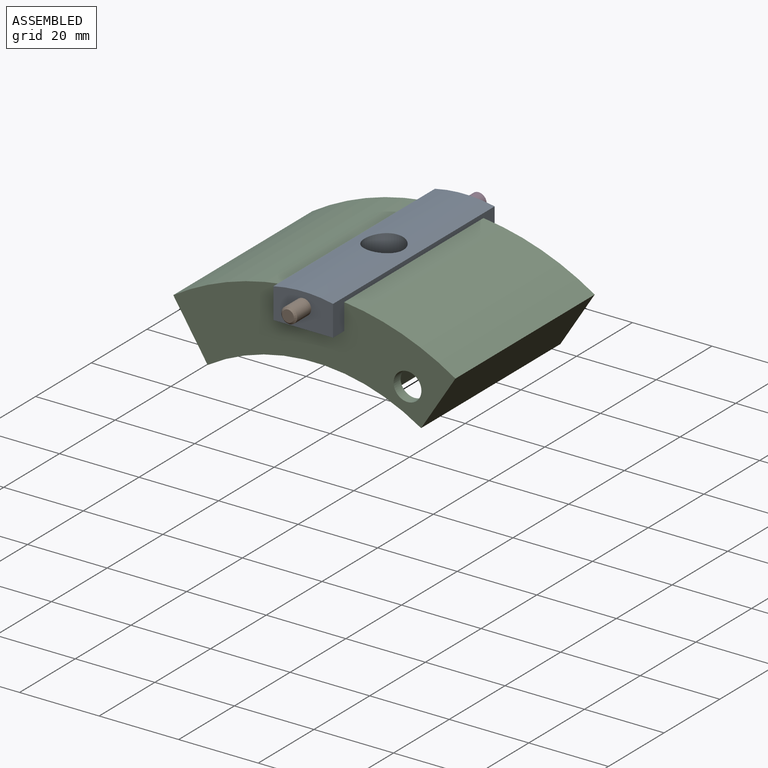
[diagram: assembled view]
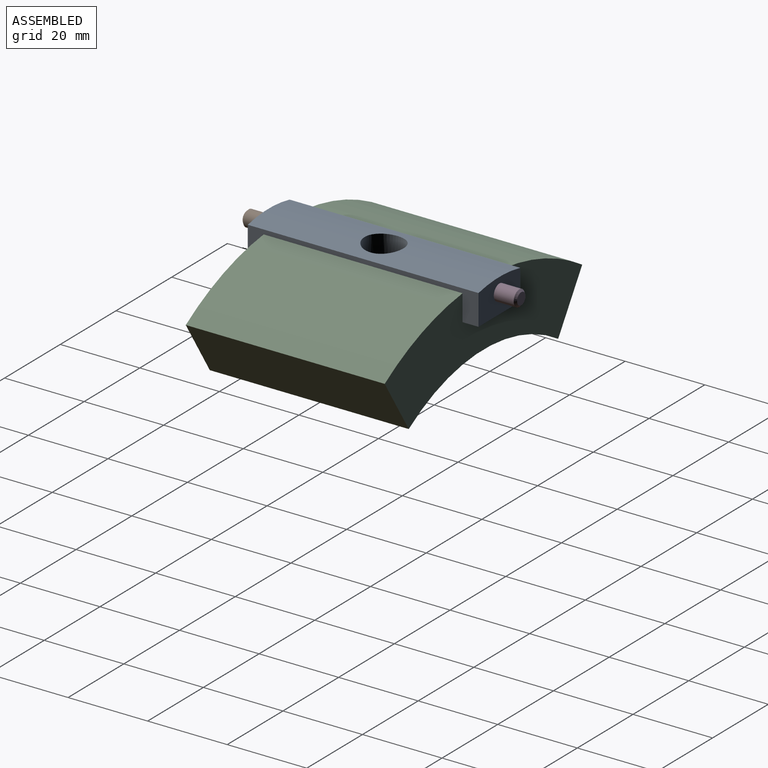
[diagram: assembled view, second angle]
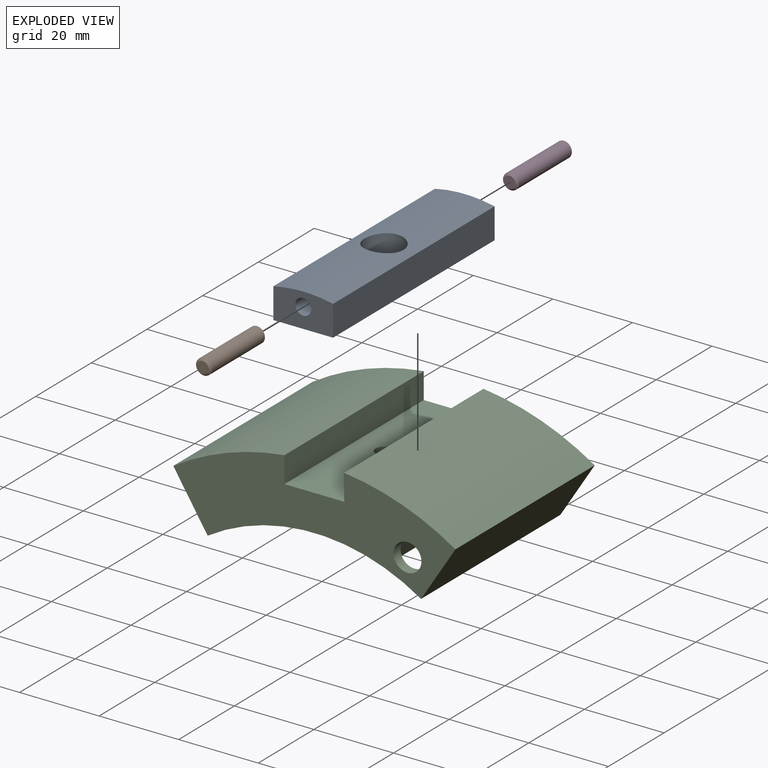
[diagram: exploded view]
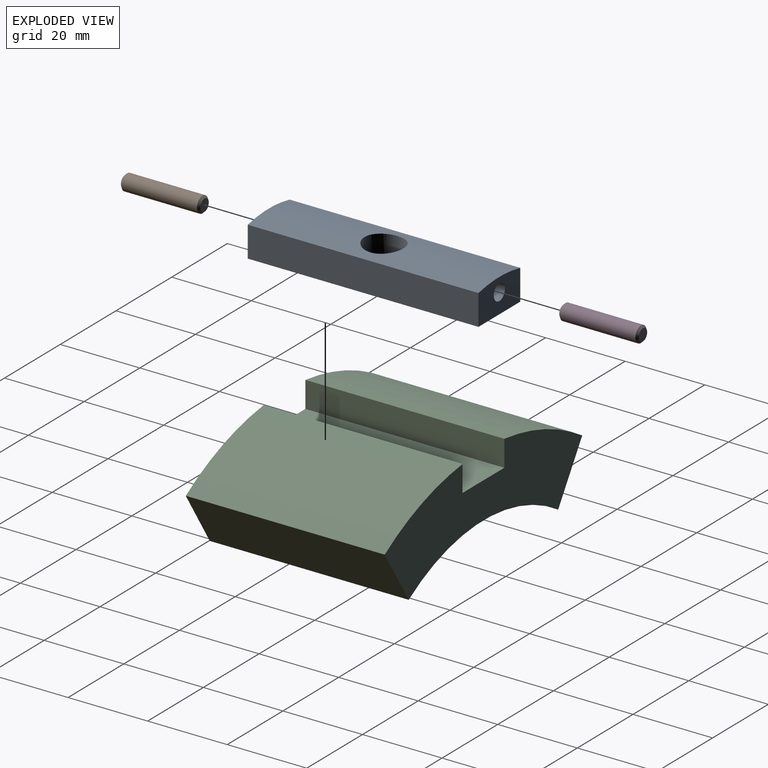
[diagram: exploded view, second angle]
ASSEMBLY  parts=4 mates=3
PART A: 13 faces, bbox 15x58x8.5 mm
  f0: cylinder r=35mm len=58mm, axis (0,1,0), area 802mm2, adj f2,f3,f4,f5,f11
  f1: plane 58x15mm, normal (0,0,-1), area 850.4mm2, adj f2,f3,f4,f5,f10
  f2: plane 58x7.69mm, normal (1,0,0), area 445.8mm2, adj f0,f1,f4,f5
  f3: plane 58x7.69mm, normal (-1,0,0), area 445.8mm2, adj f0,f1,f4,f5
  f4: plane 15x8.5mm, normal (0,-1,0), area 110.9mm2, adj f0,f1,f2,f3,f8
  f5: plane 15x8.5mm, normal (0,1,0), area 110.9mm2, adj f0,f1,f2,f3,f6
  f6: cylinder r=2mm len=14mm, axis (0,1,0), area 175.9mm2, adj f5,f7
  f7: cone r=0mm half-angle=59deg, axis (0,1,0), area 14.7mm2, adj f6
  f8: cylinder r=2mm len=14mm, axis (0,-1,0), area 175.9mm2, adj f4,f9
  f9: cone r=0mm half-angle=59deg, axis (0,-1,0), area 14.7mm2, adj f8
  f10: cylinder r=2.5mm len=5mm, axis (0,0,1), area 55mm2, adj f1,f12
  f11: cylinder r=4.88mm len=9.75mm, axis (0,0,1), area 147.9mm2, adj f0,f12
  f12: plane 9.75x9.75mm, normal (0,0,1), area 55mm2, adj f10,f11
PART B: 5 faces, bbox 4x4x20 mm
  f0: cylinder r=2mm len=19mm, axis (0,0,-1), area 238.8mm2, adj f3,f4
  f1: plane 3x3mm, normal (0,0,1), area 7.1mm2, adj f4
  f2: plane 3x3mm, normal (0,0,-1), area 7.1mm2, adj f3
  f3: cone r=2mm half-angle=45deg, axis (0,0,1), area 7.8mm2, adj f0,f2
  f4: cone r=1.5mm half-angle=45deg, axis (0,0,-1), area 7.8mm2, adj f0,f1
PART C: 23 faces, bbox 70.9x50x23.5 mm
  f0: cylinder r=1mm len=9.49mm, axis (-0.42,0,-0.91), area 14.1mm2, adj f1,f3,f13,f14,f19,f22
  f1: plane 6.31x4.65mm, normal (0,1,0), area 6mm2, adj f0,f2,f19,f22
  f2: cylinder r=1mm len=9.49mm, axis (-0.42,0,-0.91), area 14.7mm2, adj f1,f3,f14,f15,f19,f22
  f3: cylinder r=49.92mm len=53.65mm, axis (0,1,0), area 2472.3mm2, adj f0,f2,f7,f8,f11,f12,f13,f14
  f4: plane 50x15mm, normal (0,0,1), area 736.1mm2, adj f5,f10,f11,f12,f20
  f5: plane 50x6.57mm, normal (1,0,0), area 328.6mm2, adj f4,f6,f11,f12
  f6: cylinder r=66mm len=50mm, axis (0,1,0), area 1496.1mm2, adj f5,f7,f11,f12
  f7: plane 50x13.56mm, normal (-0.84,0,-0.54), area 803.8mm2, adj f3,f6,f11,f12
  f8: plane 50x13.56mm, normal (0.84,0,-0.54), area 803.8mm2, adj f3,f9,f11,f12
  f9: cylinder r=66mm len=50mm, axis (0,1,0), area 1496.1mm2, adj f8,f10,f11,f12
  f10: plane 50x6.57mm, normal (-1,0,0), area 328.6mm2, adj f4,f9,f11,f12
  f11: plane 70.92x23.47mm, normal (0,-1,0), area 915.8mm2, adj f3,f4,f5,f6,f7,f8,f9,f10
  f12: plane 70.92x23.47mm, normal (0,1,0), area 954.3mm2, adj f3,f4,f5,f6,f7,f8,f9,f10
  f13: plane 43x9.07mm, normal (0.91,0,-0.42), area 430mm2, adj f0,f3,f18,f19
  f14: plane 7.24x6.16mm, normal (0,1,0), area 17.2mm2, adj f0,f2,f3,f22
  f15: plane 43x9.07mm, normal (-0.91,0,0.42), area 430mm2, adj f2,f3,f16,f19
  f16: cylinder r=1mm len=9.49mm, axis (-0.42,0,-0.91), area 15.7mm2, adj f3,f15,f17,f19
  f17: plane 11.53x9.62mm, normal (0,-1,0), area 59.2mm2, adj f3,f16,f18,f19
  f18: cylinder r=1mm len=9.49mm, axis (-0.42,0,-0.91), area 15.7mm2, adj f3,f13,f17,f19
  f19: plane 45x7.26mm, normal (-0.42,0,-0.91), area 359.1mm2, adj f0,f1,f2,f13,f15,f16,f17,f18
  f20: cylinder r=2.1mm len=4.8mm, axis (0,0,1), area 63.3mm2, adj f4,f21
  f21: cone r=0mm half-angle=59deg, axis (0,0,1), area 16.2mm2, adj f20
  f22: cylinder r=3.5mm len=7mm, axis (0,-1,0), area 55.5mm2, adj f0,f1,f2,f11,f14
PART D: same geometry as B
PLACE A t=(-110.85,56.06,-11.06)mm
PLACE B rot(axis=(-1,0,0),90deg) t=(-103.35,-7.44,-6.06)mm
PLACE C t=(-103.35,52.06,-70.06)mm
PLACE D rot(axis=(1,0,0),90deg) t=(-103.35,61.56,-6.06)mm
MATE fastened D.f0 <-> A.f6  axis (0,1,0) through (-103.35,42.06,-6.06)mm
MATE fastened A.f10 <-> C.f20  axis (0,0,-1) through (-103.35,27.06,-11.06)mm
MATE fastened B.f0 <-> A.f6  axis (0,1,0) through (-103.35,12.06,-6.06)mm
